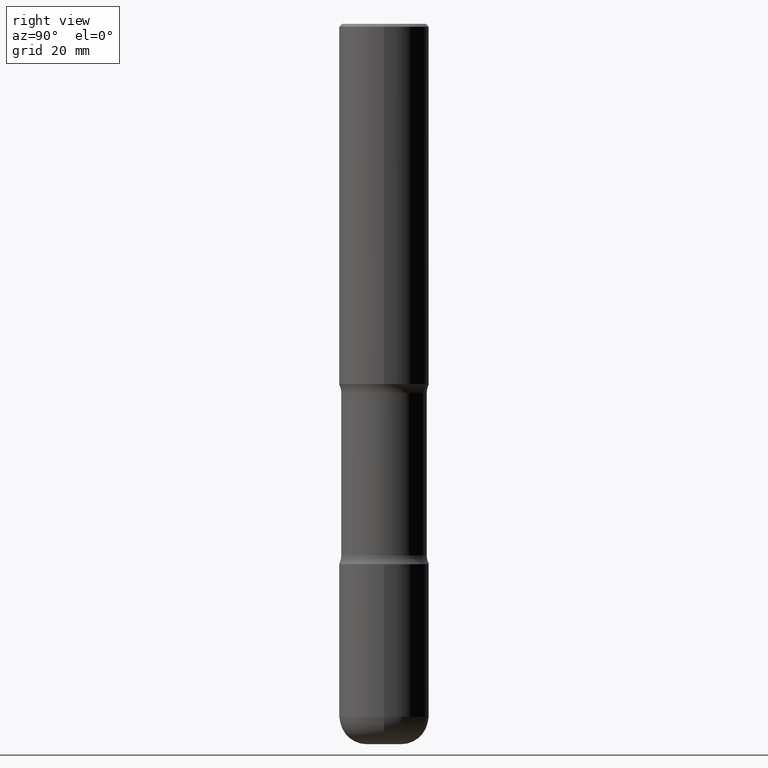
[diagram: clean part render]
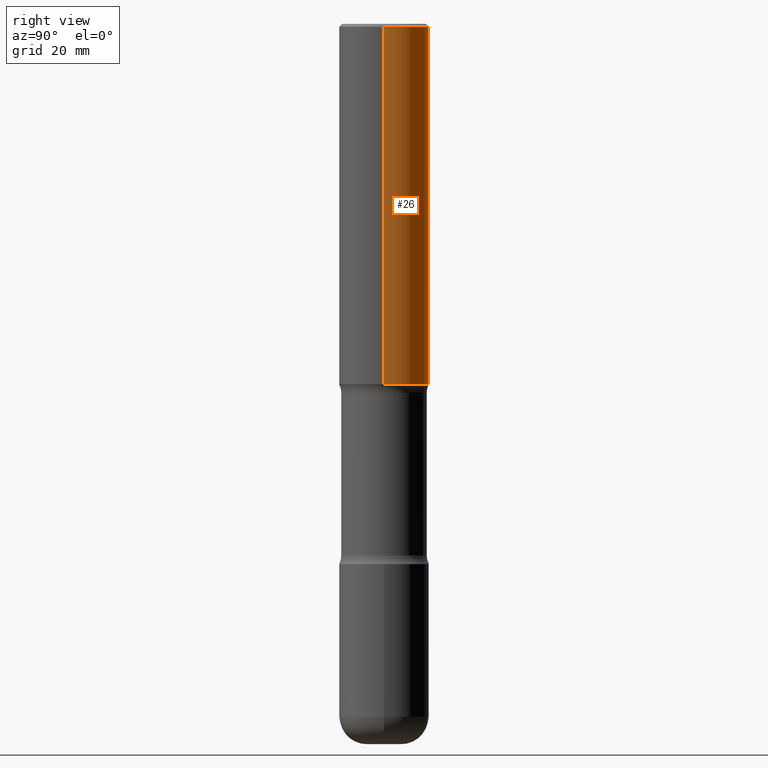
[diagram: same view with one face highlighted and labeled with its STEP entity id]
A machine part, right view. The second image highlights one B-rep face of the part: STEP entity #26.
In plain terms, the highlighted cylindrical surface (partial cylindrical patch) has radius 7.9375 mm, axis along (-0, 0, 1).
Its self-contained STEP definition (entity closure, byte-faithful):
#6 = DIRECTION ( 'NONE',  ( 1.000000000000000000, -6.982962677686266711E-15, 4.876176775795936353E-29 ) ) ;
#9 = EDGE_CURVE ( 'NONE', #390, #218, #244, .T. ) ;
#11 = ORIENTED_EDGE ( 'NONE', *, *, #134, .F. ) ;
#23 = CARTESIAN_POINT ( 'NONE',  ( -0.3125000000000000000, 2.220446049250313081E-15, -1.537167215704658232E-29 ) ) ;
#26 = ADVANCED_FACE ( 'NONE', ( #408 ), #256, .T. ) ;
#27 = AXIS2_PLACEMENT_3D ( 'NONE', #486, #97, #6 ) ;
#83 = CARTESIAN_POINT ( 'NONE',  ( -0.3124999999999998890, 2.112346210000094260E-15, -0.02000000000000006981 ) ) ;
#87 = ORIENTED_EDGE ( 'NONE', *, *, #204, .T. ) ;
#97 = DIRECTION ( 'NONE',  ( -2.445468806185136597E-29, 3.491481338843145583E-15, 1.000000000000000000 ) ) ;
#113 = VECTOR ( 'NONE', #383, 39.37007874015748143 ) ;
#127 = ORIENTED_EDGE ( 'NONE', *, *, #9, .F. ) ;
#134 = EDGE_CURVE ( 'NONE', #177, #390, #203, .T. ) ;
#141 = CARTESIAN_POINT ( 'NONE',  ( 4.890937612370289799E-31, -6.982962677686315028E-17, -0.02000000000000006981 ) ) ;
#157 = ORIENTED_EDGE ( 'NONE', *, *, #529, .T. ) ;
#177 = VERTEX_POINT ( 'NONE', #478 ) ;
#185 = CIRCLE ( 'NONE', #386, 0.3125000000000002220 ) ;
#203 = LINE ( 'NONE', #385, #113 ) ;
#204 = EDGE_CURVE ( 'NONE', #177, #423, #185, .T. ) ;
#218 = VERTEX_POINT ( 'NONE', #83 ) ;
#244 = CIRCLE ( 'NONE', #498, 0.3124999999999998890 ) ;
#256 = CYLINDRICAL_SURFACE ( 'NONE', #27, 0.3125000000000000000 ) ;
#269 = DIRECTION ( 'NONE',  ( -2.445468806185136597E-29, 3.491481338843145583E-15, 1.000000000000000000 ) ) ;
#285 = EDGE_LOOP ( 'NONE', ( #87, #157, #127, #11 ) ) ;
#301 = DIRECTION ( 'NONE',  ( -2.445468806185136597E-29, 3.491481338843145583E-15, 1.000000000000000000 ) ) ;
#316 = CARTESIAN_POINT ( 'NONE',  ( 6.113672015462840371E-29, -8.728703347107863365E-15, -2.499999999999999556 ) ) ;
#331 = CARTESIAN_POINT ( 'NONE',  ( 0.3124999999999998890, -2.213735251080466123E-15, -0.02000000000000006981 ) ) ;
#368 = VECTOR ( 'NONE', #544, 39.37007874015748143 ) ;
#383 = DIRECTION ( 'NONE',  ( -2.445468806185136877E-29, 3.491481338843145188E-15, 1.000000000000000000 ) ) ;
#385 = CARTESIAN_POINT ( 'NONE',  ( 0.3125000000000000000, -2.182175836776958347E-15, 1.523805242436230075E-29 ) ) ;
#386 = AXIS2_PLACEMENT_3D ( 'NONE', #316, #301, #548 ) ;
#390 = VERTEX_POINT ( 'NONE', #331 ) ;
#399 = DIRECTION ( 'NONE',  ( 1.000000000000000000, -6.982962677686266711E-15, 0.000000000000000000 ) ) ;
#408 = FACE_OUTER_BOUND ( 'NONE', #285, .T. ) ;
#423 = VERTEX_POINT ( 'NONE', #493 ) ;
#478 = CARTESIAN_POINT ( 'NONE',  ( 0.3125000000000002220, -1.091087918388482329E-14, -2.499999999999999556 ) ) ;
#486 = CARTESIAN_POINT ( 'NONE',  ( 0.000000000000000000, 0.000000000000000000, 0.000000000000000000 ) ) ;
#493 = CARTESIAN_POINT ( 'NONE',  ( -0.3125000000000002220, -2.178820437692046306E-15, -2.499999999999999556 ) ) ;
#498 = AXIS2_PLACEMENT_3D ( 'NONE', #141, #269, #399 ) ;
#501 = LINE ( 'NONE', #23, #368 ) ;
#529 = EDGE_CURVE ( 'NONE', #423, #218, #501, .T. ) ;
#544 = DIRECTION ( 'NONE',  ( -2.445468806185136877E-29, 3.491481338843145188E-15, 1.000000000000000000 ) ) ;
#548 = DIRECTION ( 'NONE',  ( 1.000000000000000000, -6.982962677686266711E-15, 0.000000000000000000 ) ) ;